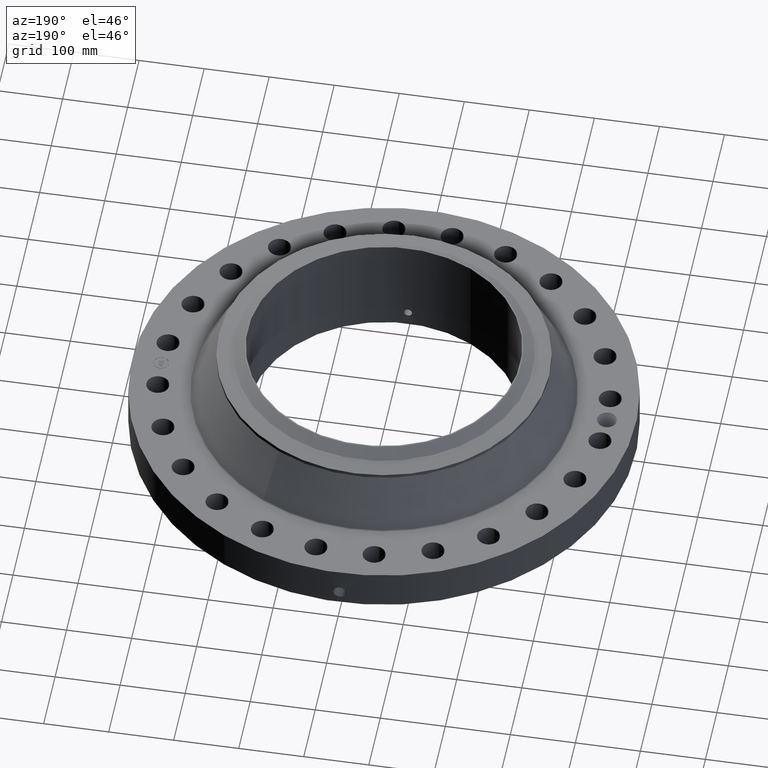
[diagram: clean part render]
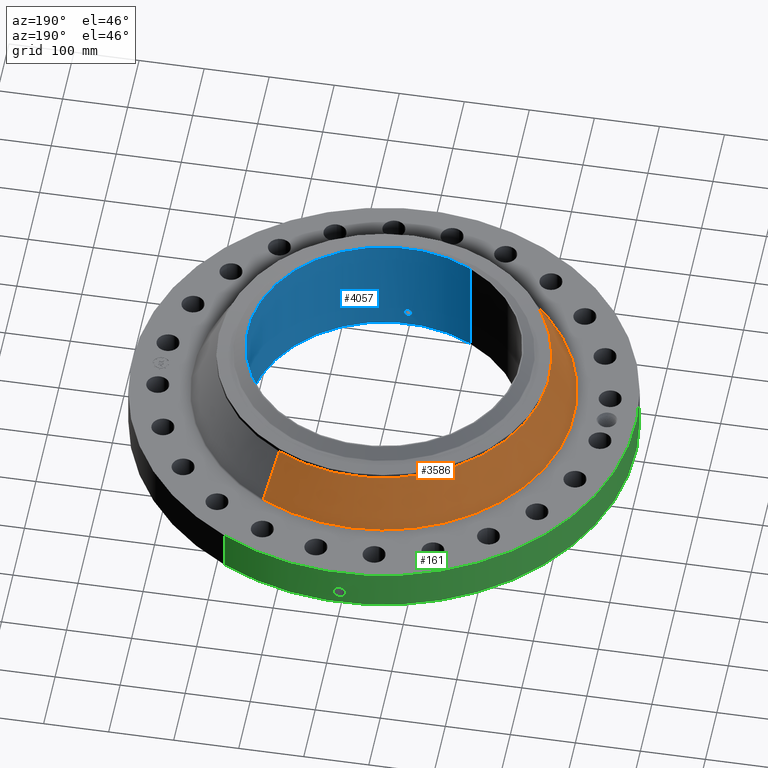
[diagram: same view with three faces highlighted in distinct colors, each labeled with its STEP entity id]
A machine part, auxiliary view with three faces highlighted in distinct colors.
Their STEP definitions:

[orange] entity #3586 — the highlighted conical surface has half-angle 27.842 deg.
#2872=AXIS2_PLACEMENT_3D('Circle Axis2P3D',#2870,#2871,$) ;
#3547=AXIS2_PLACEMENT_3D('Cone Axis2P3D',#3544,#3545,#3546) ;
#3577=AXIS2_PLACEMENT_3D('Circle Axis2P3D',#3575,#3576,$) ;
#2848=CARTESIAN_POINT('Vertex',(5.5259642045,10.115209627,2.62395561081)) ;
#2855=CARTESIAN_POINT('Vertex',(-5.5259642045,-10.115209627,2.62395561081)) ;
#2870=CARTESIAN_POINT('Axis2P3D Location',(0.,0.,2.62395561081)) ;
#3544=CARTESIAN_POINT('Axis2P3D Location',(0.,0.,5.5135401396)) ;
#3549=CARTESIAN_POINT('Line Origine',(5.16010979528,9.44551762295,4.06874787521)) ;
#3553=CARTESIAN_POINT('Vertex',(4.79425538606,8.77582561894,5.5135401396)) ;
#3560=CARTESIAN_POINT('Vertex',(-4.79425538606,-8.77582561894,5.5135401396)) ;
#3563=CARTESIAN_POINT('Line Origine',(-5.16010979528,-9.44551762295,4.06874787521)) ;
#3575=CARTESIAN_POINT('Axis2P3D Location',(0.,0.,5.5135401396)) ;
#2871=DIRECTION('Axis2P3D Direction',(0.,0.,-0.0393700787402)) ;
#3545=DIRECTION('Axis2P3D Direction',(0.,0.,-0.0393700787402)) ;
#3546=DIRECTION('Axis2P3D XDirection',(-0.0188750212049,-0.0345504945626,0.)) ;
#3550=DIRECTION('Vector Direction',(0.00881532528861,0.0161363447037,-0.0348125195823)) ;
#3564=DIRECTION('Vector Direction',(-0.00881532528861,-0.0161363447037,-0.0348125195823)) ;
#3576=DIRECTION('Axis2P3D Direction',(0.,0.,-0.0393700787402)) ;
#3551=VECTOR('Line Direction',#3550,0.0393700787402) ;
#3565=VECTOR('Line Direction',#3564,0.0393700787402) ;
#3581=ORIENTED_EDGE('',*,*,#2874,.F.) ;
#3582=ORIENTED_EDGE('',*,*,#3567,.T.) ;
#3583=ORIENTED_EDGE('',*,*,#3579,.T.) ;
#3584=ORIENTED_EDGE('',*,*,#3555,.F.) ;
#3586=ADVANCED_FACE('PartBody',(#3585),#3548,.T.) ;
#2873=CIRCLE('generated circle',#2872,11.5262199435) ;
#3578=CIRCLE('generated circle',#3577,10.) ;
#3548=CONICAL_SURFACE('Cone',#3547,10.,0.485936413733) ;
#2874=EDGE_CURVE('',#2856,#2849,#2873,.T.) ;
#3555=EDGE_CURVE('',#2849,#3554,#3552,.F.) ;
#3567=EDGE_CURVE('',#2856,#3561,#3566,.F.) ;
#3579=EDGE_CURVE('',#3561,#3554,#3578,.T.) ;
#3580=EDGE_LOOP('',(#3581,#3582,#3583,#3584)) ;
#3585=FACE_OUTER_BOUND('',#3580,.T.) ;
#3552=LINE('Line',#3549,#3551) ;
#3566=LINE('Line',#3563,#3565) ;
#2849=VERTEX_POINT('',#2848) ;
#2856=VERTEX_POINT('',#2855) ;
#3554=VERTEX_POINT('',#3553) ;
#3561=VERTEX_POINT('',#3560) ;

[blue] entity #4057 — the highlighted cylindrical surface (partial cylindrical patch) has radius 209.55 mm, axis along (0, 0, -1).
#3270=AXIS2_PLACEMENT_3D('Circle Axis2P3D',#3268,#3269,$) ;
#3988=AXIS2_PLACEMENT_3D('Cylinder Axis2P3D',#3985,#3986,#3987) ;
#3992=AXIS2_PLACEMENT_3D('Circle Axis2P3D',#3990,#3991,$) ;
#3268=CARTESIAN_POINT('Axis2P3D Location',(0.,0.,0.)) ;
#3272=CARTESIAN_POINT('Vertex',(3.9552606935,7.24005613562,-6.71378962923E-014)) ;
#3274=CARTESIAN_POINT('Vertex',(-3.9552606935,-7.24005613562,-6.71378962923E-014)) ;
#3985=CARTESIAN_POINT('Axis2P3D Location',(0.,0.,3.22000000001)) ;
#3990=CARTESIAN_POINT('Axis2P3D Location',(0.,0.,6.44000000003)) ;
#3994=CARTESIAN_POINT('Vertex',(3.9552606935,7.24005613562,6.44000000003)) ;
#3996=CARTESIAN_POINT('Vertex',(-3.9552606935,-7.24005613562,6.44000000003)) ;
#3999=CARTESIAN_POINT('Line Origine',(3.9552606935,7.24005613562,3.22000000001)) ;
#4004=CARTESIAN_POINT('Line Origine',(-3.9552606935,-7.24005613562,3.22000000001)) ;
#4016=CARTESIAN_POINT('Control Point',(0.219395640473,-8.24708224486,0.820143615352)) ;
#4017=CARTESIAN_POINT('Control Point',(0.194443177117,-8.24774605074,0.774468437551)) ;
#4018=CARTESIAN_POINT('Control Point',(0.157605920044,-8.24863158829,0.735289260559)) ;
#4019=CARTESIAN_POINT('Control Point',(0.11110968323,-8.24949278377,0.70675761277)) ;
#4020=CARTESIAN_POINT('Control Point',(0.0336753628327,-8.25017798873,0.68411770837)) ;
#4021=CARTESIAN_POINT('Control Point',(-0.0446689823011,-8.24994122763,0.691943340633)) ;
#4022=CARTESIAN_POINT('Control Point',(-0.0702981492975,-8.2497574269,0.69795558342)) ;
#4023=CARTESIAN_POINT('Control Point',(-0.143953549126,-8.24894518048,0.725786278236)) ;
#4024=CARTESIAN_POINT('Control Point',(-0.203240642795,-8.24761932207,0.780498508723)) ;
#4025=CARTESIAN_POINT('Control Point',(-0.232206727967,-8.24674965403,0.826735944364)) ;
#4026=CARTESIAN_POINT('Control Point',(-0.255840010934,-8.24603466121,0.904883353726)) ;
#4027=CARTESIAN_POINT('Control Point',(-0.248283665643,-8.24626308003,0.984249639575)) ;
#4028=CARTESIAN_POINT('Control Point',(-0.242049868043,-8.24645425832,1.01081354677)) ;
#4029=CARTESIAN_POINT('Control Point',(-0.232316018879,-8.24673852637,1.03620579062)) ;
#4030=CARTESIAN_POINT('Control Point',(-0.219395640473,-8.24708224486,1.05985638466)) ;
#4031=CARTESIAN_POINT('Vertex',(0.219395640473,-8.24708224486,0.820143615352)) ;
#4033=CARTESIAN_POINT('Vertex',(-0.219395640473,-8.24708224486,1.05985638466)) ;
#4037=CARTESIAN_POINT('Control Point',(-0.219395640473,-8.24708224486,1.05985638466)) ;
#4038=CARTESIAN_POINT('Control Point',(-0.194443177119,-8.24774605074,1.10553156245)) ;
#4039=CARTESIAN_POINT('Control Point',(-0.15760592005,-8.24863158829,1.14471073944)) ;
#4040=CARTESIAN_POINT('Control Point',(-0.111109683226,-8.24949278377,1.17324238724)) ;
#4041=CARTESIAN_POINT('Control Point',(-0.0336753628268,-8.25017798873,1.19588229164)) ;
#4042=CARTESIAN_POINT('Control Point',(0.0446689823093,-8.24994122763,1.18805665937)) ;
#4043=CARTESIAN_POINT('Control Point',(0.0702981492808,-8.2497574269,1.18204441659)) ;
#4044=CARTESIAN_POINT('Control Point',(0.143953549088,-8.24894518048,1.15421372179)) ;
#4045=CARTESIAN_POINT('Control Point',(0.203240642745,-8.24761932208,1.09950149133)) ;
#4046=CARTESIAN_POINT('Control Point',(0.232206727984,-8.24674965403,1.05326405559)) ;
#4047=CARTESIAN_POINT('Control Point',(0.255840010936,-8.24603466121,0.975116646236)) ;
#4048=CARTESIAN_POINT('Control Point',(0.248283665641,-8.24626308003,0.8957503604)) ;
#4049=CARTESIAN_POINT('Control Point',(0.242049868057,-8.24645425832,0.869186453272)) ;
#4050=CARTESIAN_POINT('Control Point',(0.232316018888,-8.24673852637,0.843794209401)) ;
#4051=CARTESIAN_POINT('Control Point',(0.219395640473,-8.24708224486,0.820143615352)) ;
#3269=DIRECTION('Axis2P3D Direction',(0.,0.,-0.0393700787402)) ;
#3986=DIRECTION('Axis2P3D Direction',(0.,0.,-0.0393700787402)) ;
#3987=DIRECTION('Axis2P3D XDirection',(-0.0188750212049,-0.0345504945626,0.)) ;
#3991=DIRECTION('Axis2P3D Direction',(0.,0.,-0.0393700787402)) ;
#4000=DIRECTION('Vector Direction',(0.,0.,-0.0393700787402)) ;
#4005=DIRECTION('Vector Direction',(0.,0.,-0.0393700787402)) ;
#4001=VECTOR('Line Direction',#4000,0.0393700787402) ;
#4006=VECTOR('Line Direction',#4005,0.0393700787402) ;
#4010=ORIENTED_EDGE('',*,*,#3998,.F.) ;
#4011=ORIENTED_EDGE('',*,*,#4003,.T.) ;
#4012=ORIENTED_EDGE('',*,*,#3276,.T.) ;
#4013=ORIENTED_EDGE('',*,*,#4008,.F.) ;
#4054=ORIENTED_EDGE('',*,*,#4035,.F.) ;
#4055=ORIENTED_EDGE('',*,*,#4052,.F.) ;
#4056=FACE_BOUND('',#4053,.T.) ;
#4057=ADVANCED_FACE('PartBody',(#4014,#4056),#3989,.F.) ;
#4015=B_SPLINE_CURVE_WITH_KNOTS('',5,(#4016,#4017,#4018,#4019,#4020,#4021,#4022,#4023,#4024,#4025,#4026,#4027,#4028,#4029,#4030),.UNSPECIFIED.,.F.,.U.,(6,3,3,3,6),(0.,9.34859401946,14.0228129919,23.3728459743,28.21354529),.UNSPECIFIED.) ;
#4036=B_SPLINE_CURVE_WITH_KNOTS('',5,(#4037,#4038,#4039,#4040,#4041,#4042,#4043,#4044,#4045,#4046,#4047,#4048,#4049,#4050,#4051),.UNSPECIFIED.,.F.,.U.,(6,3,3,3,6),(0.,9.34859401868,14.0228129923,23.372845969,28.2135452881),.UNSPECIFIED.) ;
#3271=CIRCLE('generated circle',#3270,8.25000000003) ;
#3993=CIRCLE('generated circle',#3992,8.25000000003) ;
#3989=CYLINDRICAL_SURFACE('generated cylinder',#3988,8.25000000003) ;
#3276=EDGE_CURVE('',#3273,#3275,#3271,.T.) ;
#3998=EDGE_CURVE('',#3995,#3997,#3993,.T.) ;
#4003=EDGE_CURVE('',#3995,#3273,#4002,.T.) ;
#4008=EDGE_CURVE('',#3997,#3275,#4007,.T.) ;
#4035=EDGE_CURVE('',#4032,#4034,#4015,.T.) ;
#4052=EDGE_CURVE('',#4034,#4032,#4036,.T.) ;
#4009=EDGE_LOOP('',(#4010,#4011,#4012,#4013)) ;
#4053=EDGE_LOOP('',(#4054,#4055)) ;
#4014=FACE_OUTER_BOUND('',#4009,.T.) ;
#4002=LINE('Line',#3999,#4001) ;
#4007=LINE('Line',#4004,#4006) ;
#3273=VERTEX_POINT('',#3272) ;
#3275=VERTEX_POINT('',#3274) ;
#3995=VERTEX_POINT('',#3994) ;
#3997=VERTEX_POINT('',#3996) ;
#4032=VERTEX_POINT('',#4031) ;
#4034=VERTEX_POINT('',#4033) ;

[green] entity #161 — the highlighted cylindrical surface (partial cylindrical patch) has radius 387.35 mm, axis along (0, 0, -1).
#38=AXIS2_PLACEMENT_3D('Cylinder Axis2P3D',#35,#36,#37) ;
#42=AXIS2_PLACEMENT_3D('Circle Axis2P3D',#40,#41,$) ;
#58=AXIS2_PLACEMENT_3D('Circle Axis2P3D',#56,#57,$) ;
#35=CARTESIAN_POINT('Axis2P3D Location',(0.,0.,3.22000000001)) ;
#40=CARTESIAN_POINT('Axis2P3D Location',(0.,0.,0.0600000000002)) ;
#44=CARTESIAN_POINT('Vertex',(-7.31123946374,-13.3831340689,0.0600000000002)) ;
#46=CARTESIAN_POINT('Vertex',(7.31123946374,13.3831340689,0.0600000000002)) ;
#49=CARTESIAN_POINT('Line Origine',(-7.31123946374,-13.3831340689,1.31000000001)) ;
#53=CARTESIAN_POINT('Vertex',(-7.31123946374,-13.3831340689,2.56000000001)) ;
#56=CARTESIAN_POINT('Axis2P3D Location',(0.,0.,2.56000000001)) ;
#60=CARTESIAN_POINT('Vertex',(7.31123946374,13.3831340689,2.56000000001)) ;
#63=CARTESIAN_POINT('Line Origine',(7.31123946374,13.3831340689,1.31000000001)) ;
#75=CARTESIAN_POINT('Control Point',(-0.000716049760463,15.2499999833,1.29411846129)) ;
#76=CARTESIAN_POINT('Control Point',(-0.0189701072551,15.2499991261,1.29408159437)) ;
#77=CARTESIAN_POINT('Control Point',(-0.0372209751275,15.2499652355,1.29262936671)) ;
#78=CARTESIAN_POINT('Control Point',(-0.0552509399607,15.2498999123,1.28977927812)) ;
#79=CARTESIAN_POINT('Vertex',(-0.000715697200087,15.2499999833,1.29411851055)) ;
#81=CARTESIAN_POINT('Vertex',(-0.055242138106,15.2499001965,1.28978068759)) ;
#85=CARTESIAN_POINT('Control Point',(-0.0552420427631,15.2498999445,1.28978014022)) ;
#86=CARTESIAN_POINT('Control Point',(-0.0956981569421,15.2497533942,1.28536268072)) ;
#87=CARTESIAN_POINT('Control Point',(-0.135516524696,15.2494419834,1.27358724127)) ;
#88=CARTESIAN_POINT('Control Point',(-0.172195687342,15.2490277935,1.25523274047)) ;
#89=CARTESIAN_POINT('Vertex',(-0.172195687342,15.2490277935,1.25523274047)) ;
#93=CARTESIAN_POINT('Control Point',(-0.0310152642592,15.2499684608,0.53118928844)) ;
#94=CARTESIAN_POINT('Control Point',(-0.0961823379773,15.2498359245,0.539436739127)) ;
#95=CARTESIAN_POINT('Control Point',(-0.159294043421,15.2493594722,0.561293751281)) ;
#96=CARTESIAN_POINT('Control Point',(-0.216401136646,15.2485887094,0.596098828363)) ;
#97=CARTESIAN_POINT('Control Point',(-0.28881977138,15.2473275345,0.664189974596)) ;
#98=CARTESIAN_POINT('Control Point',(-0.33642839266,15.2462994751,0.748671469054)) ;
#99=CARTESIAN_POINT('Control Point',(-0.349472605868,15.2460004619,0.778732969923)) ;
#100=CARTESIAN_POINT('Control Point',(-0.371687708361,15.2454753168,0.848970817485)) ;
#101=CARTESIAN_POINT('Control Point',(-0.377175372902,15.2453335918,0.922141203264)) ;
#102=CARTESIAN_POINT('Control Point',(-0.374910288536,15.2453911791,0.962947951919)) ;
#103=CARTESIAN_POINT('Control Point',(-0.356496036805,15.245851249,1.060724332)) ;
#104=CARTESIAN_POINT('Control Point',(-0.30813679212,15.2469313731,1.14794325761)) ;
#105=CARTESIAN_POINT('Control Point',(-0.269818079944,15.2477093271,1.19323963325)) ;
#106=CARTESIAN_POINT('Control Point',(-0.223535778869,15.2484480489,1.22954180685)) ;
#107=CARTESIAN_POINT('Control Point',(-0.172195687342,15.2490277935,1.25523274047)) ;
#108=CARTESIAN_POINT('Vertex',(-0.0310152642592,15.2499684608,0.53118928844)) ;
#112=CARTESIAN_POINT('Control Point',(-0.0310152642592,15.2499684608,0.53118928844)) ;
#113=CARTESIAN_POINT('Control Point',(-0.0206719752859,15.2499894969,0.53087456983)) ;
#114=CARTESIAN_POINT('Control Point',(-0.0103211166376,15.2500000019,0.530936539703)) ;
#115=CARTESIAN_POINT('Control Point',(2.72878355969E-006,15.2500000001,0.531374667806)) ;
#116=CARTESIAN_POINT('Vertex',(2.72878354271E-006,15.2500000001,0.531374667806)) ;
#120=CARTESIAN_POINT('Control Point',(0.192625061438,15.2487834134,0.58741326924)) ;
#121=CARTESIAN_POINT('Control Point',(0.149005457565,15.2493344231,0.562040395763)) ;
#122=CARTESIAN_POINT('Control Point',(0.1011163867,15.2497737091,0.543779824757)) ;
#123=CARTESIAN_POINT('Control Point',(0.0508056148371,15.249999991,0.533530663288)) ;
#124=CARTESIAN_POINT('Control Point',(2.72878353261E-006,15.2500000001,0.531374667806)) ;
#125=CARTESIAN_POINT('Vertex',(0.192625061438,15.2487834134,0.58741326924)) ;
#129=CARTESIAN_POINT('Control Point',(0.192625061438,15.2487834134,0.58741326924)) ;
#130=CARTESIAN_POINT('Control Point',(0.249453783221,15.2480655439,0.620469689007)) ;
#131=CARTESIAN_POINT('Control Point',(0.299509163539,15.2471684596,0.664842822408)) ;
#132=CARTESIAN_POINT('Control Point',(0.339645810427,15.2462572537,0.718973028906)) ;
#133=CARTESIAN_POINT('Control Point',(0.383846820886,15.2451782415,0.817171323175)) ;
#134=CARTESIAN_POINT('Control Point',(0.392394948544,15.2449495023,0.922456432422)) ;
#135=CARTESIAN_POINT('Control Point',(0.39026829479,15.2450057477,0.962621078256)) ;
#136=CARTESIAN_POINT('Control Point',(0.376095244234,15.2453740937,1.03752589673)) ;
#137=CARTESIAN_POINT('Control Point',(0.343961436371,15.2461332323,1.10595638754)) ;
#138=CARTESIAN_POINT('Control Point',(0.324884519544,15.2465612243,1.13637813139)) ;
#139=CARTESIAN_POINT('Control Point',(0.263167036723,15.2478271655,1.2127360987)) ;
#140=CARTESIAN_POINT('Control Point',(0.180082080074,15.2490857223,1.26567044338)) ;
#141=CARTESIAN_POINT('Control Point',(0.121355009572,15.2497029237,1.28768574765)) ;
#142=CARTESIAN_POINT('Control Point',(0.0601974086199,15.2500001022,1.29710564982)) ;
#143=CARTESIAN_POINT('Control Point',(-2.58579355474E-005,15.25,1.2941529843)) ;
#144=CARTESIAN_POINT('Vertex',(-2.5857935549E-005,15.25,1.2941529843)) ;
#148=CARTESIAN_POINT('Control Point',(-0.000715697190492,15.2499999833,1.29411851054)) ;
#149=CARTESIAN_POINT('Control Point',(-0.000370802107379,15.2499999995,1.29413607216)) ;
#150=CARTESIAN_POINT('Control Point',(-2.58579405789E-005,15.25,1.2941529843)) ;
#36=DIRECTION('Axis2P3D Direction',(0.,0.,-0.0393700787402)) ;
#37=DIRECTION('Axis2P3D XDirection',(0.0188750212049,0.0345504945626,0.)) ;
#41=DIRECTION('Axis2P3D Direction',(0.,0.,-0.0393700787402)) ;
#50=DIRECTION('Vector Direction',(0.,0.,-0.0393700787402)) ;
#57=DIRECTION('Axis2P3D Direction',(0.,0.,-0.0393700787402)) ;
#64=DIRECTION('Vector Direction',(0.,0.,-0.0393700787402)) ;
#51=VECTOR('Line Direction',#50,0.0393700787402) ;
#65=VECTOR('Line Direction',#64,0.0393700787402) ;
#69=ORIENTED_EDGE('',*,*,#48,.F.) ;
#70=ORIENTED_EDGE('',*,*,#55,.T.) ;
#71=ORIENTED_EDGE('',*,*,#62,.T.) ;
#72=ORIENTED_EDGE('',*,*,#67,.F.) ;
#153=ORIENTED_EDGE('',*,*,#83,.T.) ;
#154=ORIENTED_EDGE('',*,*,#91,.T.) ;
#155=ORIENTED_EDGE('',*,*,#110,.F.) ;
#156=ORIENTED_EDGE('',*,*,#118,.T.) ;
#157=ORIENTED_EDGE('',*,*,#127,.F.) ;
#158=ORIENTED_EDGE('',*,*,#146,.T.) ;
#159=ORIENTED_EDGE('',*,*,#151,.F.) ;
#160=FACE_BOUND('',#152,.T.) ;
#161=ADVANCED_FACE('PartBody',(#73,#160),#39,.T.) ;
#74=B_SPLINE_CURVE_WITH_KNOTS('',3,(#75,#76,#77,#78),.UNSPECIFIED.,.F.,.U.,(4,4),(34.6166020759,36.6417164896),.UNSPECIFIED.) ;
#84=B_SPLINE_CURVE_WITH_KNOTS('',3,(#85,#86,#87,#88),.UNSPECIFIED.,.F.,.U.,(4,4),(0.,4.5728302452),.UNSPECIFIED.) ;
#92=B_SPLINE_CURVE_WITH_KNOTS('',5,(#93,#94,#95,#96,#97,#98,#99,#100,#101,#102,#103,#104,#105,#106,#107),.UNSPECIFIED.,.F.,.U.,(6,3,3,3,6),(0.,11.4156301137,17.256385617,24.6134498838,35.2811567115),.UNSPECIFIED.) ;
#111=B_SPLINE_CURVE_WITH_KNOTS('',3,(#112,#113,#114,#115),.UNSPECIFIED.,.F.,.U.,(4,4),(0.,1.07896259327),.UNSPECIFIED.) ;
#119=B_SPLINE_CURVE_WITH_KNOTS('',4,(#120,#121,#122,#123,#124),.UNSPECIFIED.,.F.,.U.,(5,5),(0.,7.07932769723),.UNSPECIFIED.) ;
#128=B_SPLINE_CURVE_WITH_KNOTS('',5,(#129,#130,#131,#132,#133,#134,#135,#136,#137,#138,#139,#140,#141,#142,#143),.UNSPECIFIED.,.F.,.U.,(6,3,3,3,6),(0.,11.5289086211,18.6079826398,25.029991714,36.2869702142),.UNSPECIFIED.) ;
#147=B_SPLINE_CURVE_WITH_KNOTS('',2,(#148,#149,#150),.UNSPECIFIED.,.F.,.U.,(3,3),(1.021811413,1.04760230385),.UNSPECIFIED.) ;
#43=CIRCLE('generated circle',#42,15.2500000001) ;
#59=CIRCLE('generated circle',#58,15.2500000001) ;
#39=CYLINDRICAL_SURFACE('generated cylinder',#38,15.2500000001) ;
#48=EDGE_CURVE('',#45,#47,#43,.T.) ;
#55=EDGE_CURVE('',#45,#54,#52,.F.) ;
#62=EDGE_CURVE('',#54,#61,#59,.T.) ;
#67=EDGE_CURVE('',#47,#61,#66,.F.) ;
#83=EDGE_CURVE('',#80,#82,#74,.T.) ;
#91=EDGE_CURVE('',#82,#90,#84,.T.) ;
#110=EDGE_CURVE('',#109,#90,#92,.T.) ;
#118=EDGE_CURVE('',#109,#117,#111,.T.) ;
#127=EDGE_CURVE('',#126,#117,#119,.T.) ;
#146=EDGE_CURVE('',#126,#145,#128,.T.) ;
#151=EDGE_CURVE('',#80,#145,#147,.T.) ;
#68=EDGE_LOOP('',(#69,#70,#71,#72)) ;
#152=EDGE_LOOP('',(#153,#154,#155,#156,#157,#158,#159)) ;
#73=FACE_OUTER_BOUND('',#68,.T.) ;
#52=LINE('Line',#49,#51) ;
#66=LINE('Line',#63,#65) ;
#45=VERTEX_POINT('',#44) ;
#47=VERTEX_POINT('',#46) ;
#54=VERTEX_POINT('',#53) ;
#61=VERTEX_POINT('',#60) ;
#80=VERTEX_POINT('',#79) ;
#82=VERTEX_POINT('',#81) ;
#90=VERTEX_POINT('',#89) ;
#109=VERTEX_POINT('',#108) ;
#117=VERTEX_POINT('',#116) ;
#126=VERTEX_POINT('',#125) ;
#145=VERTEX_POINT('',#144) ;